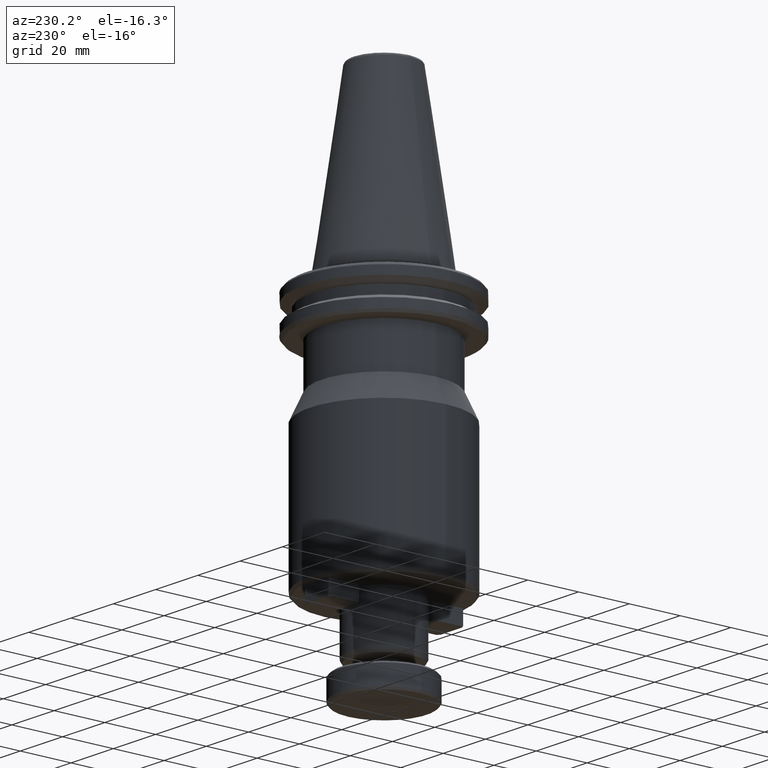
[diagram: clean part render]
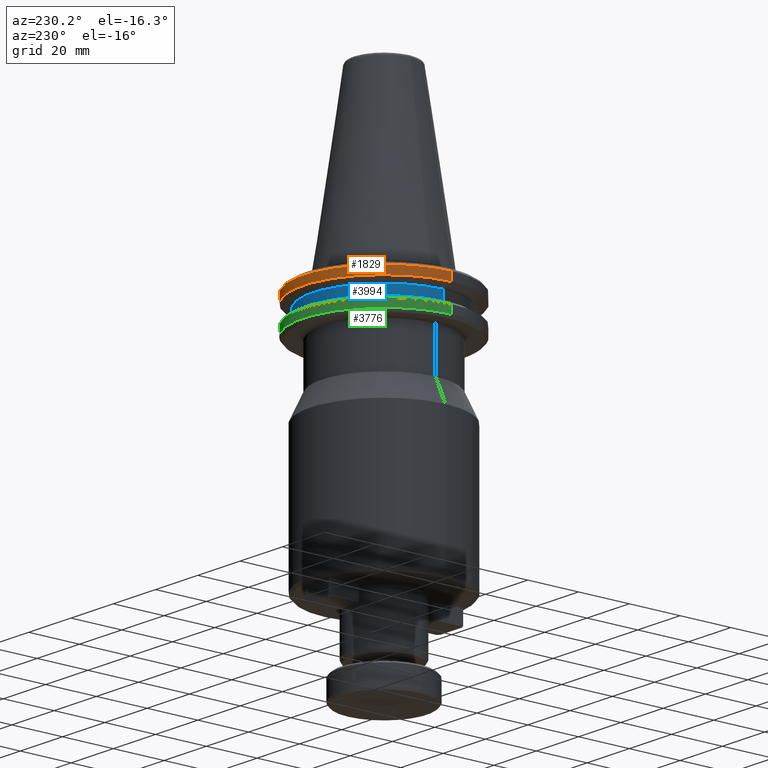
[diagram: same view with three faces highlighted in distinct colors, each labeled with its STEP entity id]
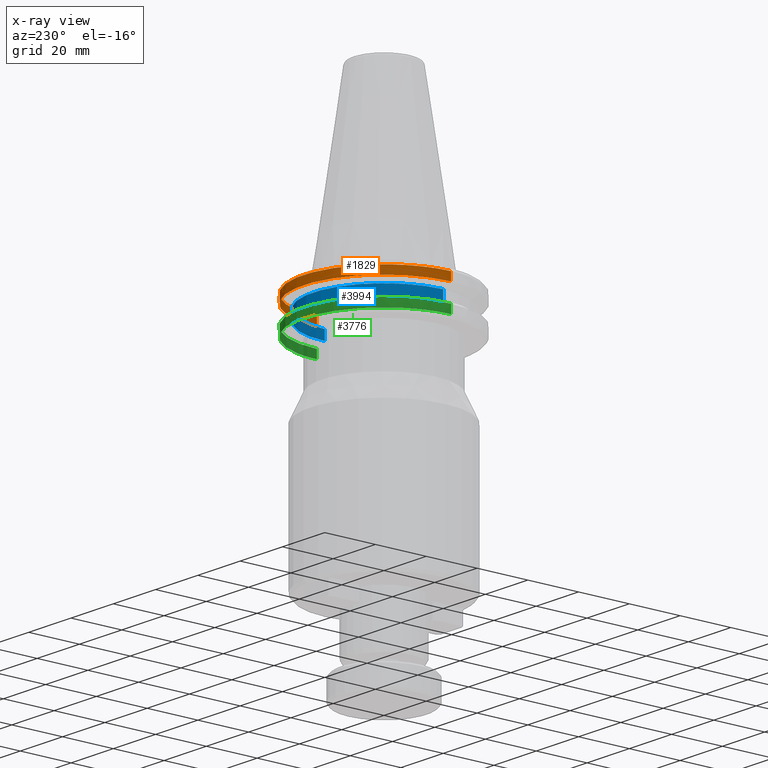
[diagram: x-ray of the same camera — body ghosted, the three highlighted faces saturated]
A machine part, auxiliary view with three faces highlighted in distinct colors.
The next image is the same camera in x-ray (body ghosted, the three faces saturated) — at least one of them is partly hidden behind the body in this view.
Their STEP definitions:

[orange] entity #1829 — the highlighted cylindrical surface (partial cylindrical patch) has radius 31.75 mm, axis along (0, 0, 1).
#33 = AXIS2_PLACEMENT_3D ( 'NONE', #1943, #1031, #1011 ) ;
#249 = VERTEX_POINT ( 'NONE', #2694 ) ;
#484 = CARTESIAN_POINT ( 'NONE',  ( 0.0000000000000000000, 0.0000000000000000000, -4.365685424949236700 ) ) ;
#523 = DIRECTION ( 'NONE',  ( 1.000000000000000000, 0.0000000000000000000, -5.463695987328526400E-017 ) ) ;
#548 = DIRECTION ( 'NONE',  ( -0.0000000000000000000, -0.0000000000000000000, -1.000000000000000000 ) ) ;
#565 = CARTESIAN_POINT ( 'NONE',  ( 0.0000000000000000000, 0.0000000000000000000, -7.578163357943284800 ) ) ;
#675 = EDGE_CURVE ( 'NONE', #759, #249, #3360, .T. ) ;
#695 = CIRCLE ( 'NONE', #2876, 31.74999999999998600 ) ;
#702 = VERTEX_POINT ( 'NONE', #1049 ) ;
#720 = EDGE_CURVE ( 'NONE', #3984, #1954, #695, .T. ) ;
#722 = AXIS2_PLACEMENT_3D ( 'NONE', #2866, #2978, #2938 ) ;
#759 = VERTEX_POINT ( 'NONE', #3441 ) ;
#778 = ORIENTED_EDGE ( 'NONE', *, *, #2132, .F. ) ;
#843 = DIRECTION ( 'NONE',  ( 1.000000000000000000, 0.0000000000000000000, 0.0000000000000000000 ) ) ;
#855 = FACE_OUTER_BOUND ( 'NONE', #3987, .T. ) ;
#1011 = DIRECTION ( 'NONE',  ( 1.000000000000000000, -1.776356839400250500E-015, 0.0000000000000000000 ) ) ;
#1012 = EDGE_CURVE ( 'NONE', #2353, #2022, #1942, .T. ) ;
#1031 = DIRECTION ( 'NONE',  ( -0.0000000000000000000, -0.0000000000000000000, -1.000000000000000000 ) ) ;
#1049 = CARTESIAN_POINT ( 'NONE',  ( -31.75000000000000000, 3.888253587292846500E-015, -7.578163357943284800 ) ) ;
#1233 = DIRECTION ( 'NONE',  ( 0.0000000000000000000, 0.0000000000000000000, 1.000000000000000000 ) ) ;
#1309 = AXIS2_PLACEMENT_3D ( 'NONE', #484, #2777, #843 ) ;
#1433 = CARTESIAN_POINT ( 'NONE',  ( 0.0000000000000000000, 1.481009926952079100E-014, -4.365685424949320200 ) ) ;
#1664 = EDGE_CURVE ( 'NONE', #249, #2022, #1938, .T. ) ;
#1745 = AXIS2_PLACEMENT_3D ( 'NONE', #3718, #1848, #4017 ) ;
#1829 = ADVANCED_FACE ( 'NONE', ( #855 ), #2399, .T. ) ;
#1848 = DIRECTION ( 'NONE',  ( -0.0000000000000000000, -1.224606353822377300E-016, 1.000000000000000000 ) ) ;
#1878 = DIRECTION ( 'NONE',  ( -0.0000000000000000000, -1.224606353822377300E-016, 1.000000000000000000 ) ) ;
#1938 = CIRCLE ( 'NONE', #2632, 31.74999999999998600 ) ;
#1942 = CIRCLE ( 'NONE', #33, 31.75000000000000000 ) ;
#1943 = CARTESIAN_POINT ( 'NONE',  ( 0.0000000000000000000, 0.0000000000000000000, -4.365685424949320200 ) ) ;
#1954 = VERTEX_POINT ( 'NONE', #2039 ) ;
#2022 = VERTEX_POINT ( 'NONE', #2089 ) ;
#2039 = CARTESIAN_POINT ( 'NONE',  ( -31.74999999999998600, 3.888253587292850400E-015, -4.365685424949320200 ) ) ;
#2089 = CARTESIAN_POINT ( 'NONE',  ( 30.56296919415016300, 8.600431037885682500, -4.365685424949319300 ) ) ;
#2132 = EDGE_CURVE ( 'NONE', #702, #759, #3937, .T. ) ;
#2143 = DIRECTION ( 'NONE',  ( 0.0000000000000000000, 0.0000000000000000000, 1.000000000000000000 ) ) ;
#2174 = AXIS2_PLACEMENT_3D ( 'NONE', #565, #548, #523 ) ;
#2353 = VERTEX_POINT ( 'NONE', #2589 ) ;
#2399 = CYLINDRICAL_SURFACE ( 'NONE', #722, 31.75000000000000000 ) ;
#2411 = ORIENTED_EDGE ( 'NONE', *, *, #1012, .T. ) ;
#2589 = CARTESIAN_POINT ( 'NONE',  ( -18.49999999999999600, 25.80334280669851700, -4.365685424949316700 ) ) ;
#2617 = ORIENTED_EDGE ( 'NONE', *, *, #3947, .T. ) ;
#2632 = AXIS2_PLACEMENT_3D ( 'NONE', #3565, #3558, #3554 ) ;
#2668 = CARTESIAN_POINT ( 'NONE',  ( -25.80334280669851000, 18.50000000000000000, -4.365685424949317600 ) ) ;
#2694 = CARTESIAN_POINT ( 'NONE',  ( 31.74999999999998600, 3.081487911019577400E-030, -4.365685424949320200 ) ) ;
#2719 = VERTEX_POINT ( 'NONE', #2668 ) ;
#2777 = DIRECTION ( 'NONE',  ( -0.0000000000000000000, -0.0000000000000000000, -1.000000000000000000 ) ) ;
#2866 = CARTESIAN_POINT ( 'NONE',  ( 0.0000000000000000000, 0.0000000000000000000, 113.5216080541959500 ) ) ;
#2876 = AXIS2_PLACEMENT_3D ( 'NONE', #1433, #1878, #3116 ) ;
#2924 = EDGE_CURVE ( 'NONE', #702, #1954, #3469, .T. ) ;
#2938 = DIRECTION ( 'NONE',  ( 1.000000000000000000, 0.0000000000000000000, 0.0000000000000000000 ) ) ;
#2978 = DIRECTION ( 'NONE',  ( 0.0000000000000000000, 0.0000000000000000000, 1.000000000000000000 ) ) ;
#3055 = CIRCLE ( 'NONE', #1745, 31.74999999999998600 ) ;
#3081 = CARTESIAN_POINT ( 'NONE',  ( 31.75000000000000000, 0.0000000000000000000, 113.5216080541959500 ) ) ;
#3096 = CARTESIAN_POINT ( 'NONE',  ( -30.52966748735166600, 8.717907037342293100, -4.365685424949319300 ) ) ;
#3116 = DIRECTION ( 'NONE',  ( 0.0000000000000000000, -1.000000000000000000, -1.092739197465705800E-016 ) ) ;
#3147 = CIRCLE ( 'NONE', #1309, 31.75000000000000000 ) ;
#3173 = VECTOR ( 'NONE', #1233, 1000.000000000000000 ) ;
#3231 = ORIENTED_EDGE ( 'NONE', *, *, #720, .F. ) ;
#3280 = ORIENTED_EDGE ( 'NONE', *, *, #2924, .T. ) ;
#3287 = ORIENTED_EDGE ( 'NONE', *, *, #1664, .F. ) ;
#3360 = LINE ( 'NONE', #3081, #3173 ) ;
#3368 = VECTOR ( 'NONE', #2143, 1000.000000000000000 ) ;
#3420 = ORIENTED_EDGE ( 'NONE', *, *, #675, .F. ) ;
#3441 = CARTESIAN_POINT ( 'NONE',  ( 31.75000000000000000, 0.0000000000000000000, -7.578163357943286500 ) ) ;
#3469 = LINE ( 'NONE', #3990, #3368 ) ;
#3554 = DIRECTION ( 'NONE',  ( 0.0000000000000000000, -1.000000000000000000, -1.092739197465705800E-016 ) ) ;
#3558 = DIRECTION ( 'NONE',  ( -0.0000000000000000000, -1.224606353822377300E-016, 1.000000000000000000 ) ) ;
#3565 = CARTESIAN_POINT ( 'NONE',  ( 0.0000000000000000000, 1.481009926952079100E-014, -4.365685424949320200 ) ) ;
#3718 = CARTESIAN_POINT ( 'NONE',  ( 0.0000000000000000000, 1.481009926952079100E-014, -4.365685424949320200 ) ) ;
#3937 = CIRCLE ( 'NONE', #2174, 31.75000000000000000 ) ;
#3947 = EDGE_CURVE ( 'NONE', #3984, #2719, #3147, .T. ) ;
#3984 = VERTEX_POINT ( 'NONE', #3096 ) ;
#3985 = ORIENTED_EDGE ( 'NONE', *, *, #4001, .F. ) ;
#3987 = EDGE_LOOP ( 'NONE', ( #778, #3280, #3231, #2617, #3985, #2411, #3287, #3420 ) ) ;
#3990 = CARTESIAN_POINT ( 'NONE',  ( -31.75000000000000000, 3.888253587292846500E-015, 113.5216080541959500 ) ) ;
#4001 = EDGE_CURVE ( 'NONE', #2353, #2719, #3055, .T. ) ;
#4017 = DIRECTION ( 'NONE',  ( 0.0000000000000000000, -1.000000000000000000, -1.092739197465705800E-016 ) ) ;

[blue] entity #3994 — the highlighted cylindrical surface (partial cylindrical patch) has radius 28 mm, axis along (0, 0, 1).
#362 = VERTEX_POINT ( 'NONE', #2834 ) ;
#400 = CIRCLE ( 'NONE', #3905, 28.00000000000000000 ) ;
#553 = FACE_OUTER_BOUND ( 'NONE', #3086, .T. ) ;
#634 = DIRECTION ( 'NONE',  ( 0.0000000000000000000, 0.0000000000000000000, 1.000000000000000000 ) ) ;
#1038 = CARTESIAN_POINT ( 'NONE',  ( 28.00000000000000000, 0.0000000000000000000, -13.00000000000001100 ) ) ;
#1119 = LINE ( 'NONE', #1575, #1335 ) ;
#1249 = ORIENTED_EDGE ( 'NONE', *, *, #1978, .T. ) ;
#1324 = CARTESIAN_POINT ( 'NONE',  ( 0.0000000000000000000, 0.0000000000000000000, -9.199999999999999300 ) ) ;
#1335 = VECTOR ( 'NONE', #634, 1000.000000000000000 ) ;
#1379 = VECTOR ( 'NONE', #4085, 1000.000000000000000 ) ;
#1493 = ORIENTED_EDGE ( 'NONE', *, *, #2250, .T. ) ;
#1570 = CARTESIAN_POINT ( 'NONE',  ( -28.00000000000000000, 3.429011037612589700E-015, -9.199999999999999300 ) ) ;
#1575 = CARTESIAN_POINT ( 'NONE',  ( -28.00000000000000000, 3.429011037612589300E-015, 113.5216080541959500 ) ) ;
#1581 = EDGE_CURVE ( 'NONE', #2701, #2604, #3780, .T. ) ;
#1660 = DIRECTION ( 'NONE',  ( 1.000000000000000000, 0.0000000000000000000, 0.0000000000000000000 ) ) ;
#1671 = DIRECTION ( 'NONE',  ( 1.000000000000000000, 0.0000000000000000000, 0.0000000000000000000 ) ) ;
#1680 = DIRECTION ( 'NONE',  ( 0.0000000000000000000, 0.0000000000000000000, 1.000000000000000000 ) ) ;
#1695 = CARTESIAN_POINT ( 'NONE',  ( 0.0000000000000000000, 0.0000000000000000000, -13.00000000000001100 ) ) ;
#1825 = DIRECTION ( 'NONE',  ( 0.0000000000000000000, 0.0000000000000000000, 1.000000000000000000 ) ) ;
#1968 = AXIS2_PLACEMENT_3D ( 'NONE', #2162, #1825, #4006 ) ;
#1978 = EDGE_CURVE ( 'NONE', #2701, #362, #400, .T. ) ;
#2162 = CARTESIAN_POINT ( 'NONE',  ( 0.0000000000000000000, 0.0000000000000000000, 113.5216080541959500 ) ) ;
#2250 = EDGE_CURVE ( 'NONE', #362, #3676, #1119, .T. ) ;
#2315 = AXIS2_PLACEMENT_3D ( 'NONE', #1324, #3551, #1660 ) ;
#2418 = EDGE_CURVE ( 'NONE', #3676, #2604, #3978, .T. ) ;
#2604 = VERTEX_POINT ( 'NONE', #3110 ) ;
#2701 = VERTEX_POINT ( 'NONE', #1038 ) ;
#2834 = CARTESIAN_POINT ( 'NONE',  ( -28.00000000000000400, 3.429011037612590500E-015, -13.00000000000001100 ) ) ;
#2961 = CYLINDRICAL_SURFACE ( 'NONE', #1968, 28.00000000000000000 ) ;
#3086 = EDGE_LOOP ( 'NONE', ( #1249, #1493, #3182, #3145 ) ) ;
#3110 = CARTESIAN_POINT ( 'NONE',  ( 28.00000000000000000, 0.0000000000000000000, -9.199999999999999300 ) ) ;
#3145 = ORIENTED_EDGE ( 'NONE', *, *, #1581, .F. ) ;
#3182 = ORIENTED_EDGE ( 'NONE', *, *, #2418, .T. ) ;
#3551 = DIRECTION ( 'NONE',  ( -0.0000000000000000000, -0.0000000000000000000, -1.000000000000000000 ) ) ;
#3676 = VERTEX_POINT ( 'NONE', #1570 ) ;
#3780 = LINE ( 'NONE', #4044, #1379 ) ;
#3905 = AXIS2_PLACEMENT_3D ( 'NONE', #1695, #1680, #1671 ) ;
#3978 = CIRCLE ( 'NONE', #2315, 28.00000000000000000 ) ;
#3994 = ADVANCED_FACE ( 'NONE', ( #553 ), #2961, .T. ) ;
#4006 = DIRECTION ( 'NONE',  ( 1.000000000000000000, 0.0000000000000000000, 0.0000000000000000000 ) ) ;
#4044 = CARTESIAN_POINT ( 'NONE',  ( 28.00000000000000000, 0.0000000000000000000, 113.5216080541959500 ) ) ;
#4085 = DIRECTION ( 'NONE',  ( 0.0000000000000000000, 0.0000000000000000000, 1.000000000000000000 ) ) ;

[green] entity #3776 — the highlighted cylindrical surface (partial cylindrical patch) has radius 31.75 mm, axis along (0, 0, 1).
#23 = DIRECTION ( 'NONE',  ( 0.0000000000000000000, -1.000000000000000000, -1.092739197465705800E-016 ) ) ;
#28 = DIRECTION ( 'NONE',  ( -0.0000000000000000000, -1.224606353822377300E-016, 1.000000000000000000 ) ) ;
#43 = CARTESIAN_POINT ( 'NONE',  ( 0.0000000000000000000, 1.647172221650816800E-014, -17.93431457505076300 ) ) ;
#76 = AXIS2_PLACEMENT_3D ( 'NONE', #2757, #812, #3067 ) ;
#137 = DIRECTION ( 'NONE',  ( 1.000000000000000000, 0.0000000000000000000, 0.0000000000000000000 ) ) ;
#140 = CARTESIAN_POINT ( 'NONE',  ( 31.75000000000000000, 0.0000000000000000000, -14.62183664205671200 ) ) ;
#160 = CARTESIAN_POINT ( 'NONE',  ( -31.74999999999998600, 3.888253587292850400E-015, -17.93431457505076300 ) ) ;
#194 = CARTESIAN_POINT ( 'NONE',  ( 30.56296919415016300, 8.600431037885693200, -17.93431457505076300 ) ) ;
#239 = EDGE_CURVE ( 'NONE', #3142, #3890, #4062, .T. ) ;
#551 = CARTESIAN_POINT ( 'NONE',  ( 0.0000000000000000000, 0.0000000000000000000, -14.62183664205671200 ) ) ;
#594 = AXIS2_PLACEMENT_3D ( 'NONE', #1053, #3293, #1380 ) ;
#650 = LINE ( 'NONE', #705, #2308 ) ;
#694 = DIRECTION ( 'NONE',  ( 0.0000000000000000000, 0.0000000000000000000, 1.000000000000000000 ) ) ;
#705 = CARTESIAN_POINT ( 'NONE',  ( -31.75000000000000000, 3.888253587292846500E-015, 113.5216080541959500 ) ) ;
#812 = DIRECTION ( 'NONE',  ( -0.0000000000000000000, -1.224606353822377300E-016, 1.000000000000000000 ) ) ;
#835 = VERTEX_POINT ( 'NONE', #2291 ) ;
#903 = DIRECTION ( 'NONE',  ( -1.000000000000000000, 0.0000000000000000000, -5.463695987328526400E-017 ) ) ;
#934 = ORIENTED_EDGE ( 'NONE', *, *, #4105, .F. ) ;
#986 = VERTEX_POINT ( 'NONE', #3106 ) ;
#1036 = ORIENTED_EDGE ( 'NONE', *, *, #1635, .T. ) ;
#1050 = CARTESIAN_POINT ( 'NONE',  ( 31.74999999999998600, 3.081487911019577400E-030, -17.93431457505076300 ) ) ;
#1053 = CARTESIAN_POINT ( 'NONE',  ( 0.0000000000000000000, 0.0000000000000000000, -17.93431457505076300 ) ) ;
#1295 = VERTEX_POINT ( 'NONE', #194 ) ;
#1380 = DIRECTION ( 'NONE',  ( 1.000000000000000000, 0.0000000000000000000, 0.0000000000000000000 ) ) ;
#1391 = EDGE_LOOP ( 'NONE', ( #3243, #3244, #934, #4084, #1036, #2848, #3093, #3285 ) ) ;
#1414 = DIRECTION ( 'NONE',  ( 0.0000000000000000000, 0.0000000000000000000, 1.000000000000000000 ) ) ;
#1438 = CIRCLE ( 'NONE', #3025, 31.74999999999998600 ) ;
#1635 = EDGE_CURVE ( 'NONE', #3142, #1295, #2886, .T. ) ;
#1737 = DIRECTION ( 'NONE',  ( 1.000000000000000000, 0.0000000000000000000, 0.0000000000000000000 ) ) ;
#1858 = CYLINDRICAL_SURFACE ( 'NONE', #2480, 31.75000000000000000 ) ;
#1912 = CIRCLE ( 'NONE', #3027, 31.75000000000000000 ) ;
#1957 = CARTESIAN_POINT ( 'NONE',  ( -25.80334280669849500, 18.50000000000001400, -17.93431457505076000 ) ) ;
#1966 = FACE_OUTER_BOUND ( 'NONE', #1391, .T. ) ;
#2096 = EDGE_CURVE ( 'NONE', #3952, #835, #650, .T. ) ;
#2119 = DIRECTION ( 'NONE',  ( 0.0000000000000000000, 0.0000000000000000000, 1.000000000000000000 ) ) ;
#2182 = EDGE_CURVE ( 'NONE', #4083, #2472, #1438, .T. ) ;
#2291 = CARTESIAN_POINT ( 'NONE',  ( -31.75000000000000000, 3.888253587292846500E-015, -14.62183664205671200 ) ) ;
#2304 = CIRCLE ( 'NONE', #4007, 31.75000000000000000 ) ;
#2308 = VECTOR ( 'NONE', #694, 1000.000000000000000 ) ;
#2472 = VERTEX_POINT ( 'NONE', #1957 ) ;
#2480 = AXIS2_PLACEMENT_3D ( 'NONE', #3012, #1414, #1737 ) ;
#2512 = CARTESIAN_POINT ( 'NONE',  ( -18.49999999999999600, 25.80334280669852000, -17.93431457505076000 ) ) ;
#2581 = CARTESIAN_POINT ( 'NONE',  ( 31.75000000000000000, 0.0000000000000000000, 113.5216080541959500 ) ) ;
#2715 = EDGE_CURVE ( 'NONE', #2472, #986, #3131, .T. ) ;
#2757 = CARTESIAN_POINT ( 'NONE',  ( 0.0000000000000000000, 1.647172221650816800E-014, -17.93431457505076300 ) ) ;
#2786 = DIRECTION ( 'NONE',  ( 0.0000000000000000000, 0.0000000000000000000, 1.000000000000000000 ) ) ;
#2838 = DIRECTION ( 'NONE',  ( -0.0000000000000000000, -0.0000000000000000000, 1.000000000000000000 ) ) ;
#2848 = ORIENTED_EDGE ( 'NONE', *, *, #2877, .T. ) ;
#2877 = EDGE_CURVE ( 'NONE', #1295, #4083, #2304, .T. ) ;
#2886 = CIRCLE ( 'NONE', #3379, 31.74999999999998600 ) ;
#2890 = EDGE_CURVE ( 'NONE', #986, #3952, #3567, .T. ) ;
#3012 = CARTESIAN_POINT ( 'NONE',  ( 0.0000000000000000000, 0.0000000000000000000, 113.5216080541959500 ) ) ;
#3025 = AXIS2_PLACEMENT_3D ( 'NONE', #43, #28, #23 ) ;
#3027 = AXIS2_PLACEMENT_3D ( 'NONE', #551, #2838, #903 ) ;
#3067 = DIRECTION ( 'NONE',  ( 0.0000000000000000000, -1.000000000000000000, -1.092739197465705800E-016 ) ) ;
#3093 = ORIENTED_EDGE ( 'NONE', *, *, #2182, .T. ) ;
#3106 = CARTESIAN_POINT ( 'NONE',  ( -30.52966748735165600, 8.717907037342303800, -17.93431457505076300 ) ) ;
#3131 = CIRCLE ( 'NONE', #594, 31.75000000000000000 ) ;
#3142 = VERTEX_POINT ( 'NONE', #1050 ) ;
#3243 = ORIENTED_EDGE ( 'NONE', *, *, #2890, .T. ) ;
#3244 = ORIENTED_EDGE ( 'NONE', *, *, #2096, .T. ) ;
#3268 = VECTOR ( 'NONE', #2786, 1000.000000000000000 ) ;
#3285 = ORIENTED_EDGE ( 'NONE', *, *, #2715, .T. ) ;
#3293 = DIRECTION ( 'NONE',  ( 0.0000000000000000000, 0.0000000000000000000, 1.000000000000000000 ) ) ;
#3379 = AXIS2_PLACEMENT_3D ( 'NONE', #3811, #3800, #3786 ) ;
#3567 = CIRCLE ( 'NONE', #76, 31.74999999999998600 ) ;
#3776 = ADVANCED_FACE ( 'NONE', ( #1966 ), #1858, .T. ) ;
#3786 = DIRECTION ( 'NONE',  ( 0.0000000000000000000, -1.000000000000000000, -1.092739197465705800E-016 ) ) ;
#3800 = DIRECTION ( 'NONE',  ( -0.0000000000000000000, -1.224606353822377300E-016, 1.000000000000000000 ) ) ;
#3811 = CARTESIAN_POINT ( 'NONE',  ( 0.0000000000000000000, 1.647172221650816800E-014, -17.93431457505076300 ) ) ;
#3890 = VERTEX_POINT ( 'NONE', #140 ) ;
#3952 = VERTEX_POINT ( 'NONE', #160 ) ;
#3967 = CARTESIAN_POINT ( 'NONE',  ( 0.0000000000000000000, 0.0000000000000000000, -17.93431457505076300 ) ) ;
#4007 = AXIS2_PLACEMENT_3D ( 'NONE', #3967, #2119, #137 ) ;
#4062 = LINE ( 'NONE', #2581, #3268 ) ;
#4083 = VERTEX_POINT ( 'NONE', #2512 ) ;
#4084 = ORIENTED_EDGE ( 'NONE', *, *, #239, .F. ) ;
#4105 = EDGE_CURVE ( 'NONE', #3890, #835, #1912, .T. ) ;